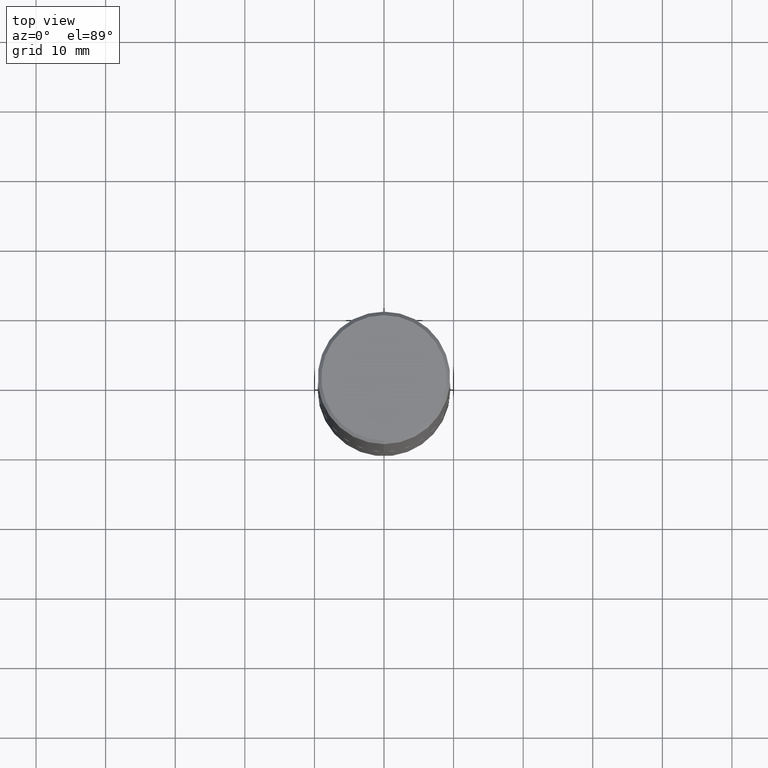
[diagram: clean part render]
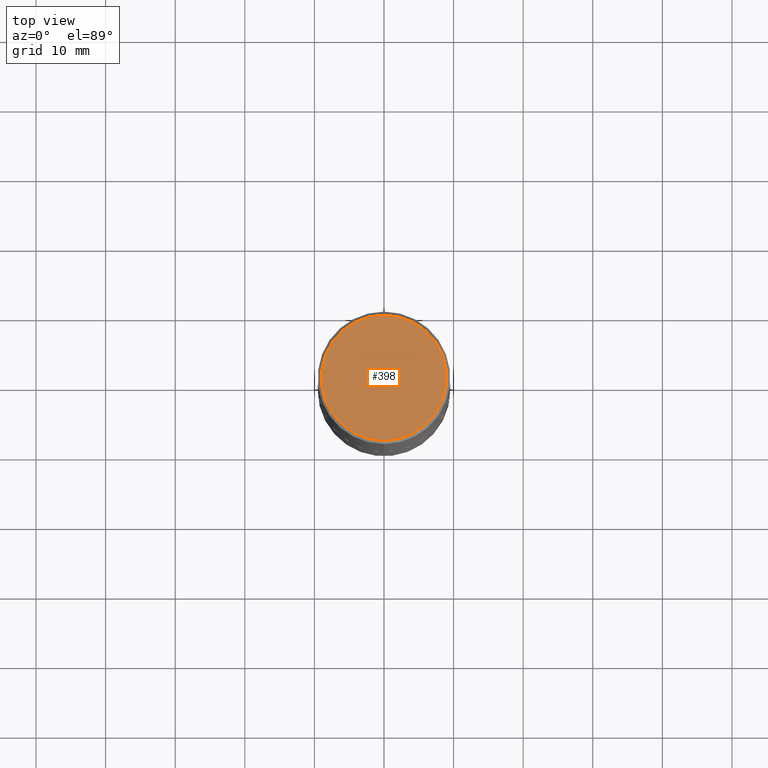
[diagram: same view with one face highlighted and labeled with its STEP entity id]
A machine part, top view. The second image highlights one B-rep face of the part: STEP entity #398.
In plain terms, the highlighted planar face has unit normal (0, -0, -1).
Its self-contained STEP definition (entity closure, byte-faithful):
#19 = CIRCLE ( 'NONE', #206, 0.3550000000000001488 ) ;
#35 = DIRECTION ( 'NONE',  ( -6.982962677686266711E-15, -1.000000000000000000, 3.492804948822114482E-15 ) ) ;
#62 = DIRECTION ( 'NONE',  ( -6.982962677686266711E-15, -1.000000000000000000, 3.492804948822114482E-15 ) ) ;
#83 = CARTESIAN_POINT ( 'NONE',  ( 4.579723842388064751E-45, -6.543583836022733140E-31, -1.873446680218842448E-16 ) ) ;
#85 = AXIS2_PLACEMENT_3D ( 'NONE', #130, #324, #35 ) ;
#102 = VERTEX_POINT ( 'NONE', #393 ) ;
#108 = VERTEX_POINT ( 'NONE', #119 ) ;
#119 = CARTESIAN_POINT ( 'NONE',  ( 2.548781377355488296E-15, 0.3550000000000001488, -1.427290424853735415E-15 ) ) ;
#122 = DIRECTION ( 'NONE',  ( 6.982962677686265922E-15, 1.000000000000000000, -3.492804948822114482E-15 ) ) ;
#129 = FACE_OUTER_BOUND ( 'NONE', #282, .T. ) ;
#130 = CARTESIAN_POINT ( 'NONE',  ( 4.579723842388064751E-45, -6.543583836022733140E-31, -1.873446680218842448E-16 ) ) ;
#146 = AXIS2_PLACEMENT_3D ( 'NONE', #293, #287, #122 ) ;
#168 = ORIENTED_EDGE ( 'NONE', *, *, #409, .T. ) ;
#181 = DIRECTION ( 'NONE',  ( -2.444544534276841438E-29, 3.492804948822114088E-15, 1.000000000000000000 ) ) ;
#206 = AXIS2_PLACEMENT_3D ( 'NONE', #83, #181, #62 ) ;
#244 = ORIENTED_EDGE ( 'NONE', *, *, #271, .T. ) ;
#271 = EDGE_CURVE ( 'NONE', #108, #102, #329, .T. ) ;
#282 = EDGE_LOOP ( 'NONE', ( #244, #168 ) ) ;
#287 = DIRECTION ( 'NONE',  ( 2.444544534276840877E-29, -3.492804948822114482E-15, -1.000000000000000000 ) ) ;
#293 = CARTESIAN_POINT ( 'NONE',  ( 2.478951750578625787E-15, 0.3550000000000001488, -1.333618090842793268E-15 ) ) ;
#323 = PLANE ( 'NONE',  #146 ) ;
#324 = DIRECTION ( 'NONE',  ( -2.444544534276841438E-29, 3.492804948822114088E-15, 1.000000000000000000 ) ) ;
#329 = CIRCLE ( 'NONE', #85, 0.3550000000000001488 ) ;
#393 = CARTESIAN_POINT ( 'NONE',  ( -2.504081769186609399E-15, -0.3550000000000001488, 1.052601088809966826E-15 ) ) ;
#398 = ADVANCED_FACE ( 'NONE', ( #129 ), #323, .F. ) ;
#409 = EDGE_CURVE ( 'NONE', #102, #108, #19, .T. ) ;